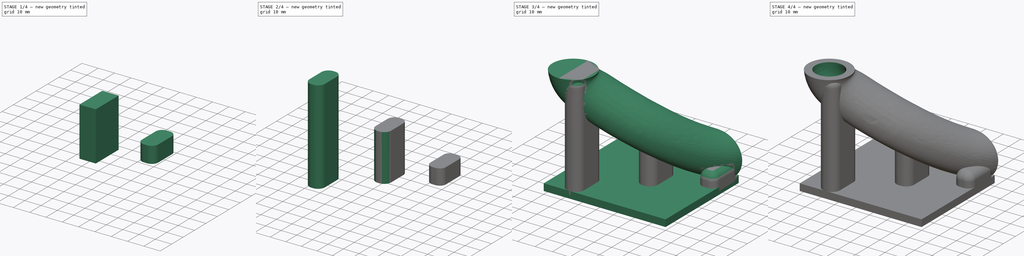
[diagram: build sequence overview — one tinted view per stage of 4, left to right]
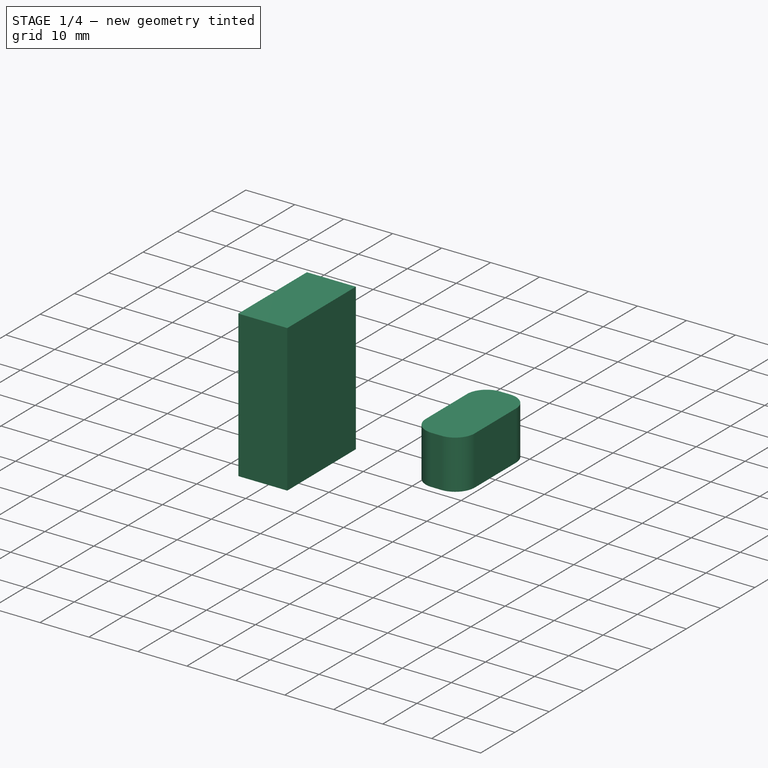
[diagram: stage 1 of 4 — iso view after this stage's code; geometry added in this stage tinted green]
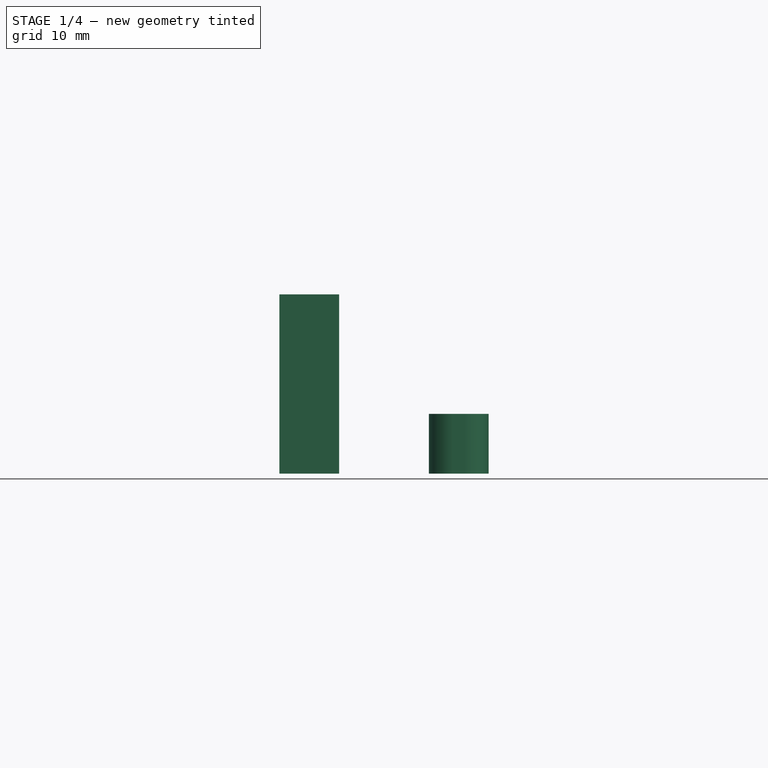
[diagram: stage 1 of 4 — front view after this stage's code; geometry added in this stage tinted green]
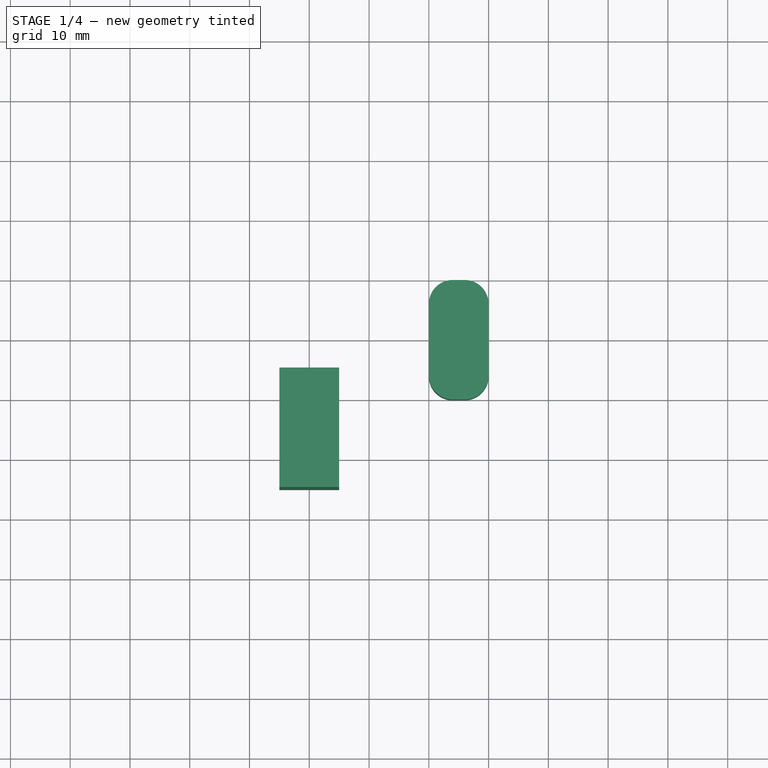
[diagram: stage 1 of 4 — top view after this stage's code; geometry added in this stage tinted green]
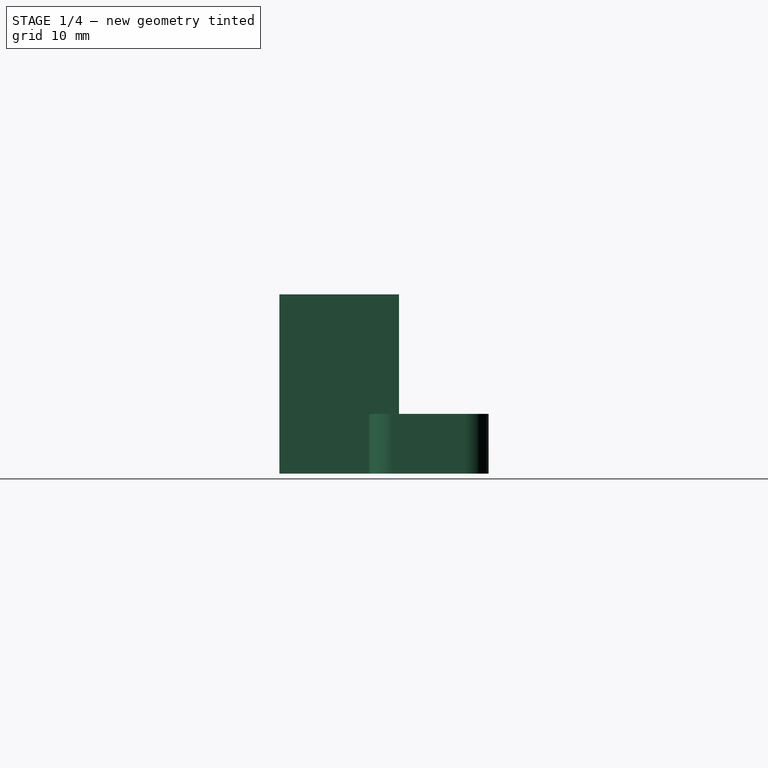
[diagram: stage 1 of 4 — right view after this stage's code; geometry added in this stage tinted green]
FCSTD DOCUMENT  (FreeCAD 1.0R39285 (Git))
Label: inletPipeV2
License: All rights reserved
LicenseURL: http://en.wikipedia.org/wiki/All_rights_reserved
objects: Sketcher::SketchObject×12, Part::Box×4, Part::Fillet×4, Part::Part2DObjectPython×2, PartDesign::AdditivePipe×2, PartDesign::Body×2, Part::MultiFuse×2, Part::Cut×1
note: 45 computed .brp shape members not serialized (recipe doc carries the construction recipe); baked Part::Feature solids carry a one-line shape summary decoded from their .brp

FEATURE [Part::Box] Box009  label="Cube007"
  AttacherType = Attacher::AttachEngine3D
  Height = 30
  Length = 10
  Placement = pos=(25,25,0) rot=(0,0,1;0rad)
  Width = 20
FEATURE [Part::Box] Box011  label="Cube009"
  AttacherType = Attacher::AttachEngine3D
  Height = 10
  Length = 10
  Placement = pos=(50,40,0) rot=(0,0,1;0rad)
  Width = 20
FEATURE [Part::Fillet] Fillet007
  Base = -> Box011
  EdgeLinks = -> Box011 [Edge1,Edge3,Edge5,Edge7]
  Edges = 4 edges r=4: [Edge1,Edge3,Edge5,Edge7]
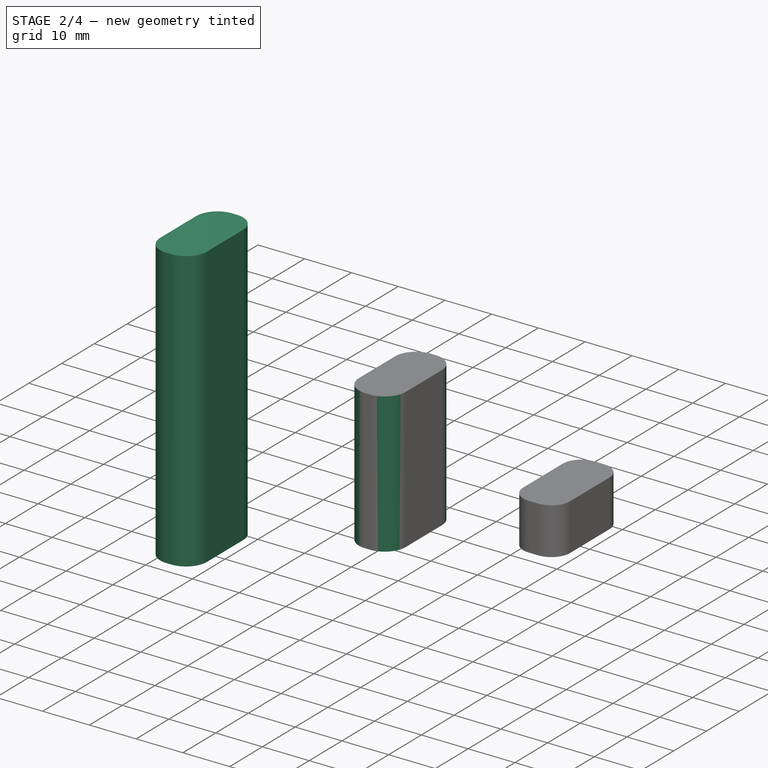
[diagram: stage 2 of 4 — iso view after this stage's code; geometry added in this stage tinted green]
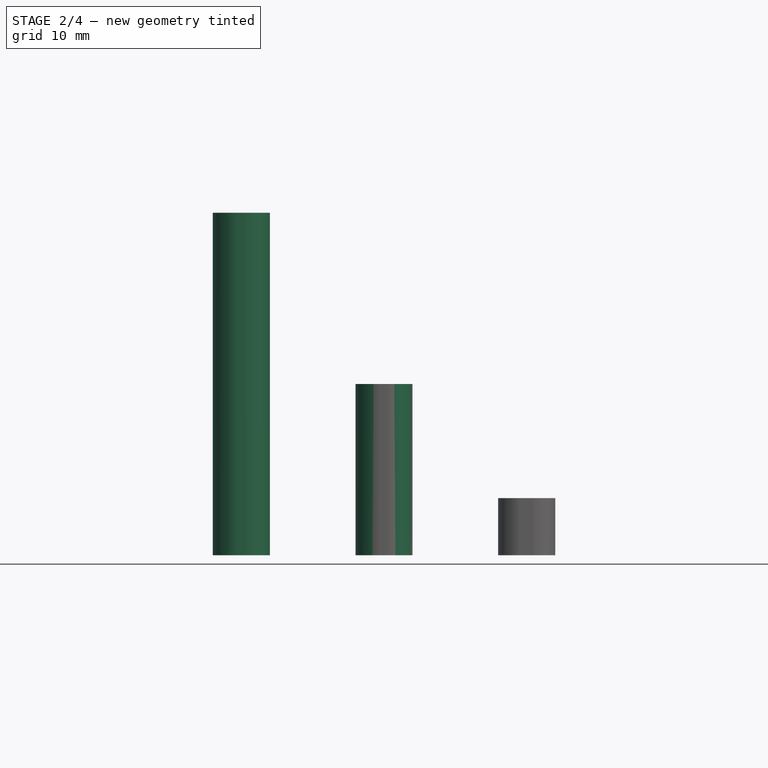
[diagram: stage 2 of 4 — front view after this stage's code; geometry added in this stage tinted green]
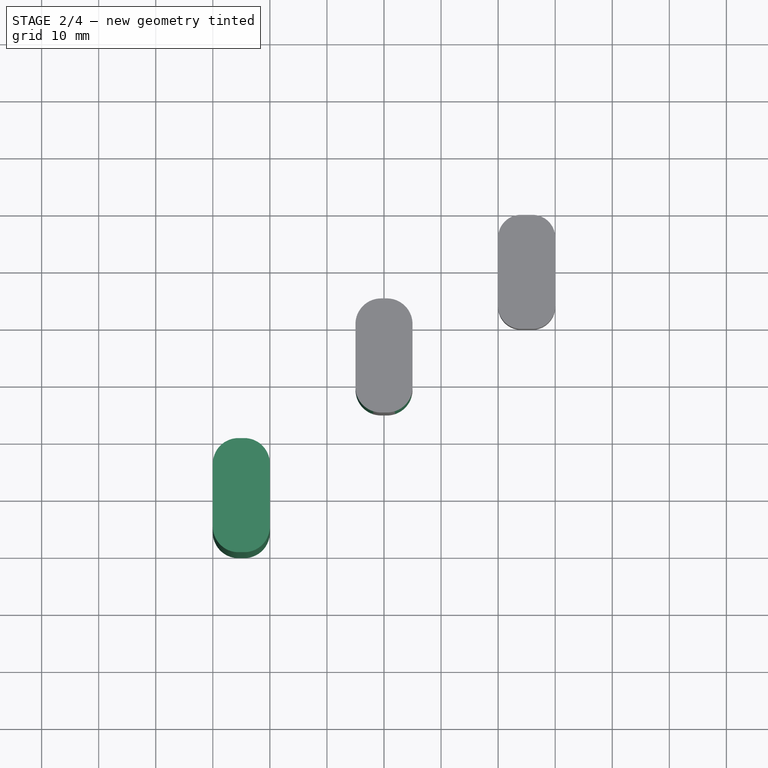
[diagram: stage 2 of 4 — top view after this stage's code; geometry added in this stage tinted green]
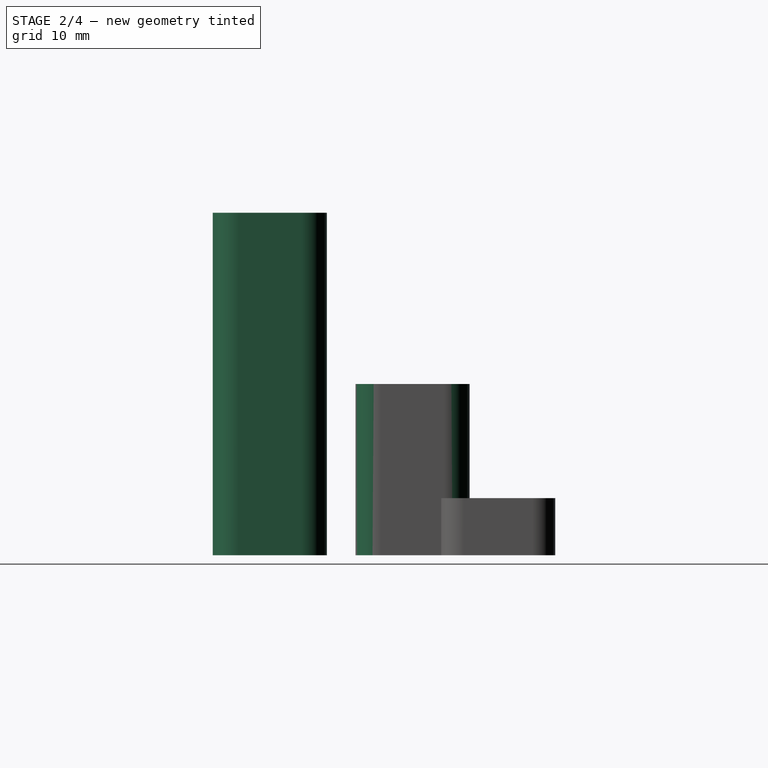
[diagram: stage 2 of 4 — right view after this stage's code; geometry added in this stage tinted green]
FEATURE [Part::Box] Box010  label="Cube008"
  AttacherType = Attacher::AttachEngine3D
  Height = 60
  Length = 10
  Width = 20
FEATURE [Part::Fillet] Fillet005
  Base = -> Box010
  EdgeLinks = -> Box010 [Edge1,Edge3,Edge5,Edge7]
  Edges = 4 edges r=4.5: [Edge1,Edge3,Edge5,Edge7]
FEATURE [Part::Fillet] Fillet006
  Base = -> Box009
  EdgeLinks = -> Box009 [Edge1,Edge3,Edge5,Edge7]
  Edges = 4 edges r=4.5: [Edge1,Edge3,Edge5,Edge7]
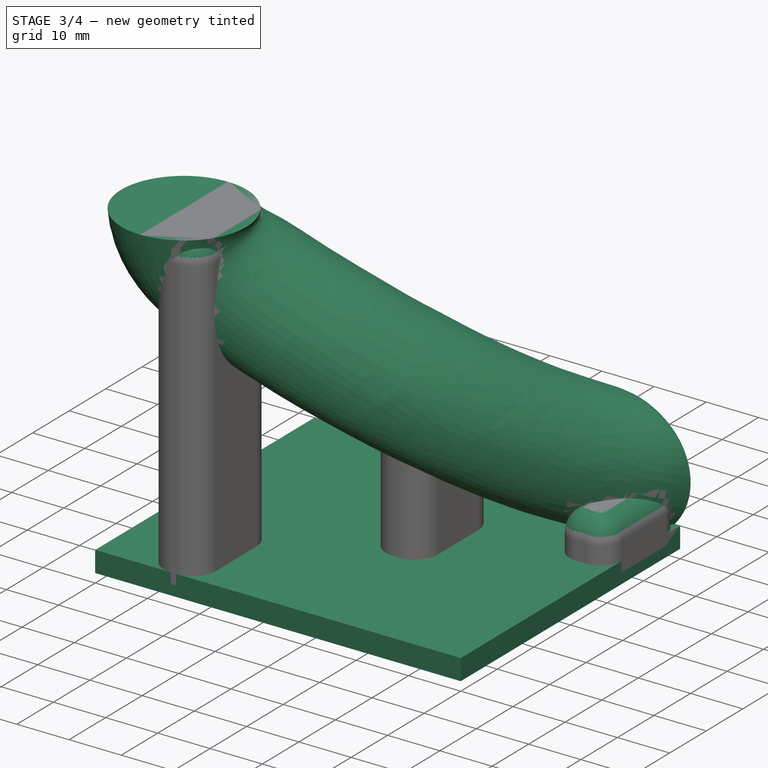
[diagram: stage 3 of 4 — iso view after this stage's code; geometry added in this stage tinted green]
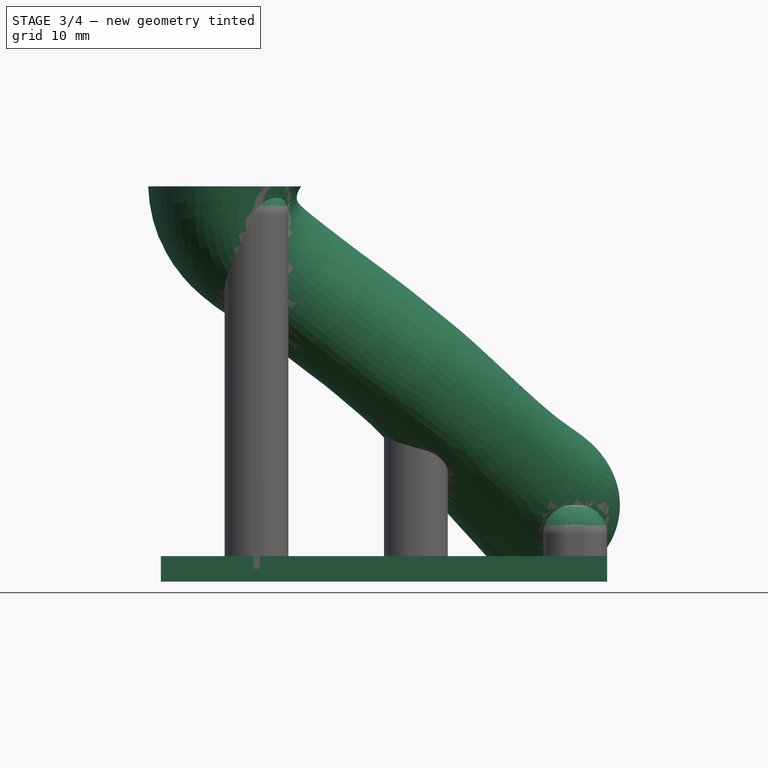
[diagram: stage 3 of 4 — front view after this stage's code; geometry added in this stage tinted green]
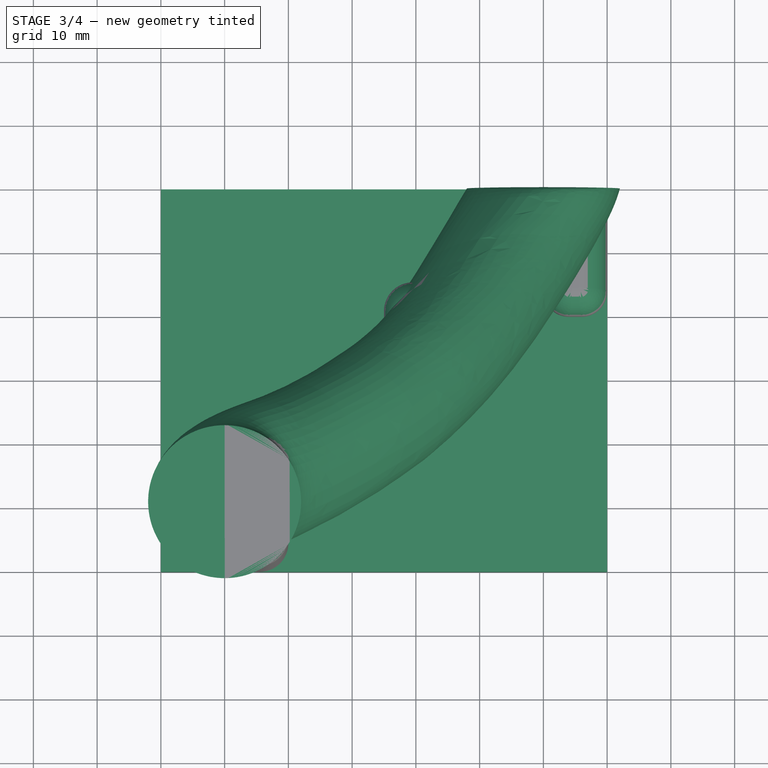
[diagram: stage 3 of 4 — top view after this stage's code; geometry added in this stage tinted green]
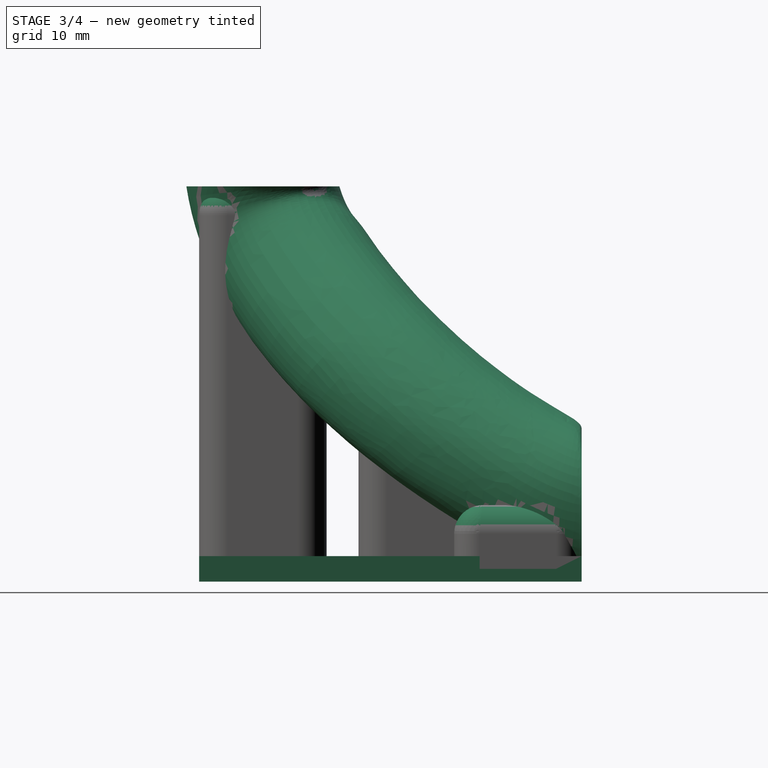
[diagram: stage 3 of 4 — right view after this stage's code; geometry added in this stage tinted green]
FEATURE [Sketcher::SketchObject] Sketch009
  ArcFitTolerance = 1e-06
  FullyConstrained = true
  MakeInternals = false
  Placement = pos=(0,0,60) rot=(0,0,1;0rad)
  sketch-geometry (1):
    g0: Circle CenterX=0 CenterY=10 CenterZ=0 NormalX=0 NormalY=0 NormalZ=1 AngleXU=0 Radius=12
  constraints (3):
    c: DistanceX(g0) = 0
    c: DistanceY(g0) = 10
    c: Radius(g0) = 12
FEATURE [Sketcher::SketchObject] Sketch008
  ArcFitTolerance = 1e-06
  FullyConstrained = true
  MakeInternals = false
  Placement = pos=(0,60,0) rot=(1,0,0;1.5708rad)
  sketch-geometry (1):
    g0: Circle CenterX=50 CenterY=10 CenterZ=0 NormalX=0 NormalY=0 NormalZ=1 AngleXU=0 Radius=12
  constraints (3):
    c: Radius(g0) = 12
    c: DistanceX(g0) = 50
    c: DistanceY(g0) = 10
FEATURE [Sketcher::SketchObject] Sketch010
  ArcFitTolerance = 1e-06
  FullyConstrained = true
  MakeInternals = false
  Placement = pos=(30,30,30) rot=(1,0,0;0.785398rad)
  sketch-geometry (1):
    g0: Circle CenterX=0 CenterY=0 CenterZ=0 NormalX=0 NormalY=0 NormalZ=1 AngleXU=0 Radius=12
  constraints (3):
    c: Radius(g0) = 12
    c: DistanceX(g0) = 0
    c: DistanceY(g0) = 0
FEATURE [Sketcher::SketchObject] Sketch011
  ArcFitTolerance = 1e-06
  FullyConstrained = true
  MakeInternals = false
  Placement = pos=(0,0,10) rot=(0,0,1;0rad)
  sketch-geometry (1):
    g0: LineSegment StartX=50 StartY=60 StartZ=0 EndX=50 EndY=50 EndZ=0
  constraints (4):
    c: Vertical(g0)
    c: DistanceX(g0) = 50
    c: DistanceY(g0,g0) = 10
    c: DistanceY(g0) = 60
FEATURE [Sketcher::SketchObject] Sketch012
  ArcFitTolerance = 1e-06
  FullyConstrained = true
  MakeInternals = false
  Placement = pos=(0,10,10) rot=(1,0,0;1.5708rad)
  sketch-geometry (1):
    g0: LineSegment StartX=0 StartY=50 StartZ=0 EndX=0 EndY=40 EndZ=0
  constraints (4):
    c: Vertical(g0)
    c: DistanceX(g0) = 0
    c: DistanceY(g0) = 50
    c: DistanceY(g0,g0) = 10
FEATURE [Sketcher::SketchObject] Sketch
  ArcFitTolerance = 1e-06
  FullyConstrained = true
  MakeInternals = false
  Placement = pos=(30,0,0) rot=(0.57735,0.57735,0.57735;2.0944rad)
  sketch-geometry (1):
    g0: LineSegment StartX=30 StartY=30 StartZ=0 EndX=33.5355 EndY=26.4645 EndZ=0
  constraints (4):
    c: Angle(g0) = -0.785398
    c: DistanceX(g0) = 30
    c: DistanceY(g0) = 30
    c: Distance(g0,g0) = 5
FEATURE [Part::Part2DObjectPython] BezCurve  # Draft 2D object (typed FeaturePython)
  Area = 0
  Closed = false
  Degree = 5
  Length = 90.8752
  MakeFace = true
  Points = (6) [(60,60,10),(50,50,10),(30,33.5355,26.4645),(40,30,30),(0,10,50),(10,10,60)]
FEATURE [PartDesign::AdditivePipe] AdditivePipe
  AuxilleryCurvelinear = true
  AuxillerySpineTangent = false
  Binormal = (0,0,0)
  Mode = 0
  Placement = pos=(0,0,60) rot=(0,0,1;0rad)
  Profile = -> Sketch009
  Sections = -> [Sketch010,Sketch008]
  Spine = -> BezCurve
  SpineTangent = false
  Suppressed = false
  Transformation = 1
  Transition = 1
FEATURE [Sketcher::SketchObject] Sketch018
  ArcFitTolerance = 1e-06
  FullyConstrained = true
  MakeInternals = false
  Placement = pos=(0,0,10) rot=(0,0,1;0rad)
  sketch-geometry (1):
    g0: LineSegment StartX=50 StartY=60 StartZ=0 EndX=50 EndY=50 EndZ=0
  constraints (4):
    c: Vertical(g0)
    c: DistanceX(g0) = 50
    c: DistanceY(g0,g0) = 10
    c: DistanceY(g0) = 60
FEATURE [Sketcher::SketchObject] Sketch019
  ArcFitTolerance = 1e-06
  FullyConstrained = true
  MakeInternals = false
  Placement = pos=(0,10,10) rot=(1,0,0;1.5708rad)
  sketch-geometry (1):
    g0: LineSegment StartX=0 StartY=50 StartZ=0 EndX=0 EndY=40 EndZ=0
  constraints (4):
    c: Vertical(g0)
    c: DistanceX(g0) = 0
    c: DistanceY(g0) = 50
    c: DistanceY(g0,g0) = 10
FEATURE [PartDesign::Body] Body003  label="inner"
  AllowCompound = false
  Group = -> [Sketch016,Sketch015,Sketch017,Sketch018,Sketch019,Sketch014,BezCurve003,AdditivePipe003]
  Origin = -> Origin003
  Tip = -> AdditivePipe003
FEATURE [Part::Box] Box008  label="Cube006"
  AttacherType = Attacher::AttachEngine3D
  Height = 4
  Length = 70
  Placement = pos=(-10,0,-2) rot=(0,0,1;0rad)
  Width = 60
FEATURE [Part::MultiFuse] Fusion002
  Shapes = -> [Box008,Fillet005,Fillet006,Fillet007]
FEATURE [Part::Fillet] Fillet008  label="support"
  Base = -> Fusion002
  EdgeLinks = -> Fusion002 [Edge47,Edge49,Edge51,Edge54,Edge56,Edge58,Edge60,Edge62,Edge64,Edge67,Edge68,Edge70,Edge73,Edge76,Edge78,Edge79,Edge81,Edge83,Edge86,Edge87,Edge91,Edge92,Edge93,Edge94]
  Edges = 24 edges r=4.5: [Edge47,Edge49,Edge51,Edge54,Edge56,Edge58,Edge60,Edge62,Edge64,Edge67,Edge68,Edge70,Edge73,Edge76,Edge78,Edge79,Edge81,Edge83,Edge86,Edge87,Edge91,Edge92,Edge93,Edge94]
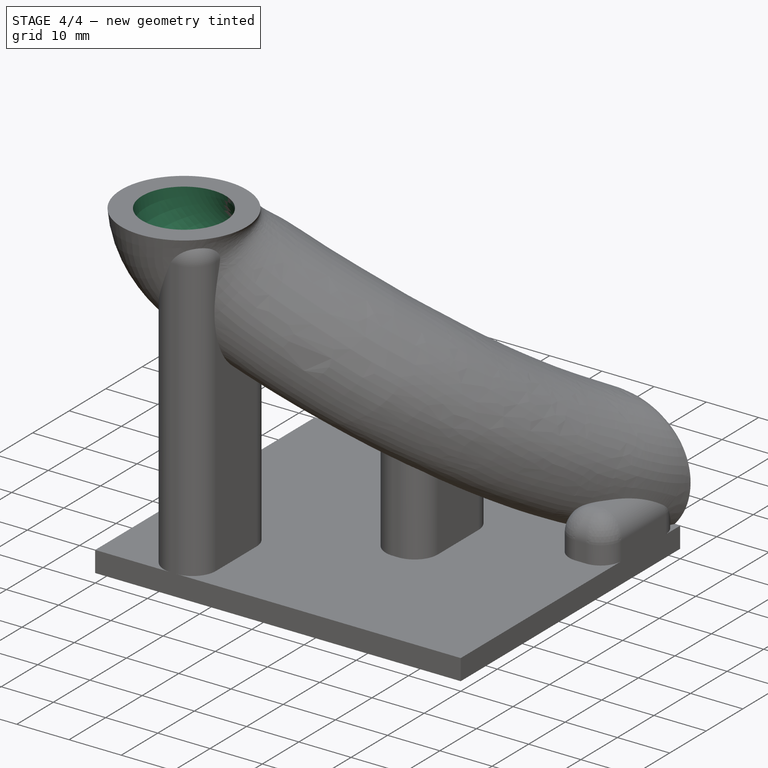
[diagram: stage 4 of 4 — iso view after this stage's code; geometry added in this stage tinted green]
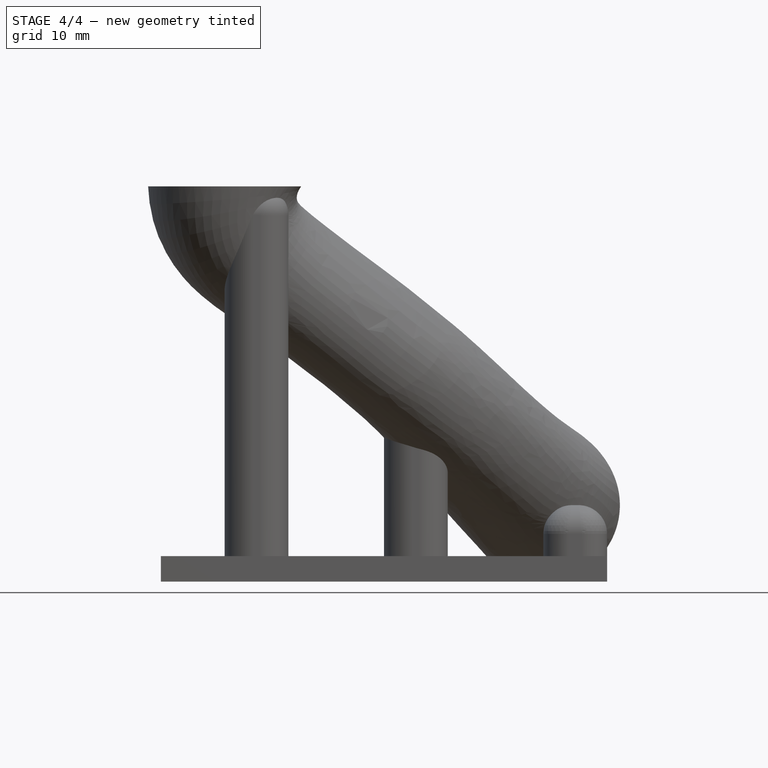
[diagram: stage 4 of 4 — front view after this stage's code; geometry added in this stage tinted green]
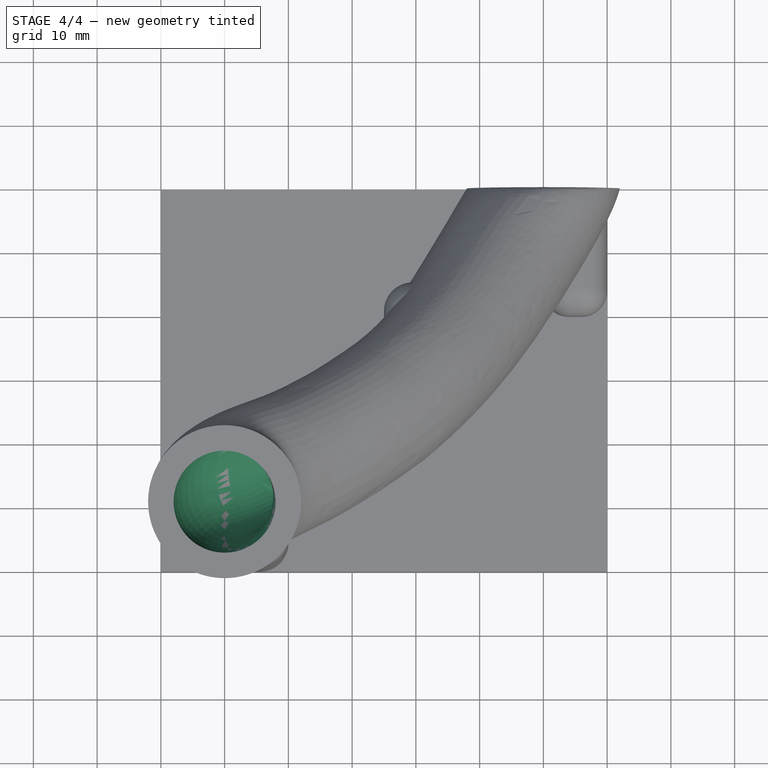
[diagram: stage 4 of 4 — top view after this stage's code; geometry added in this stage tinted green]
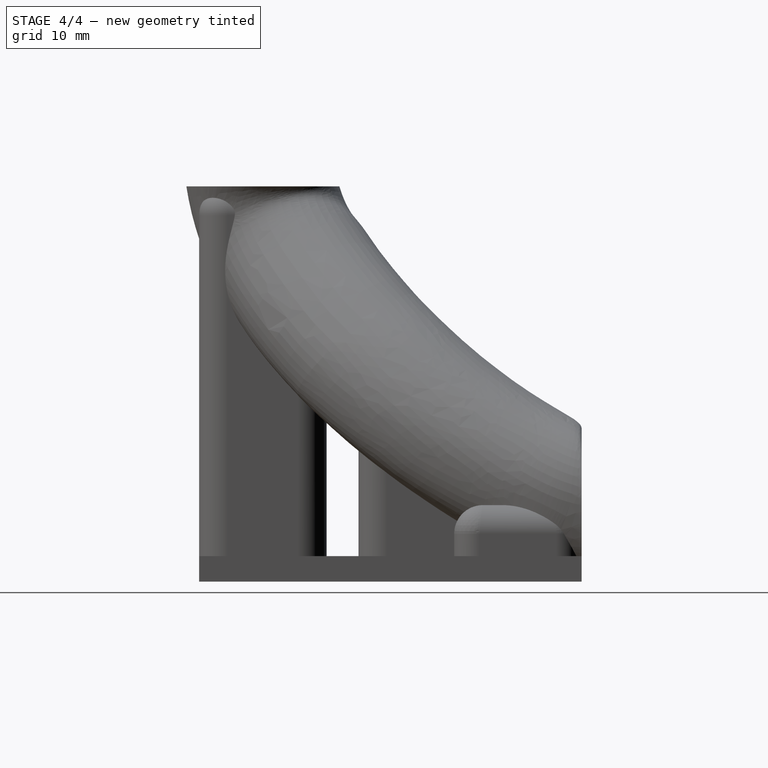
[diagram: stage 4 of 4 — right view after this stage's code; geometry added in this stage tinted green]
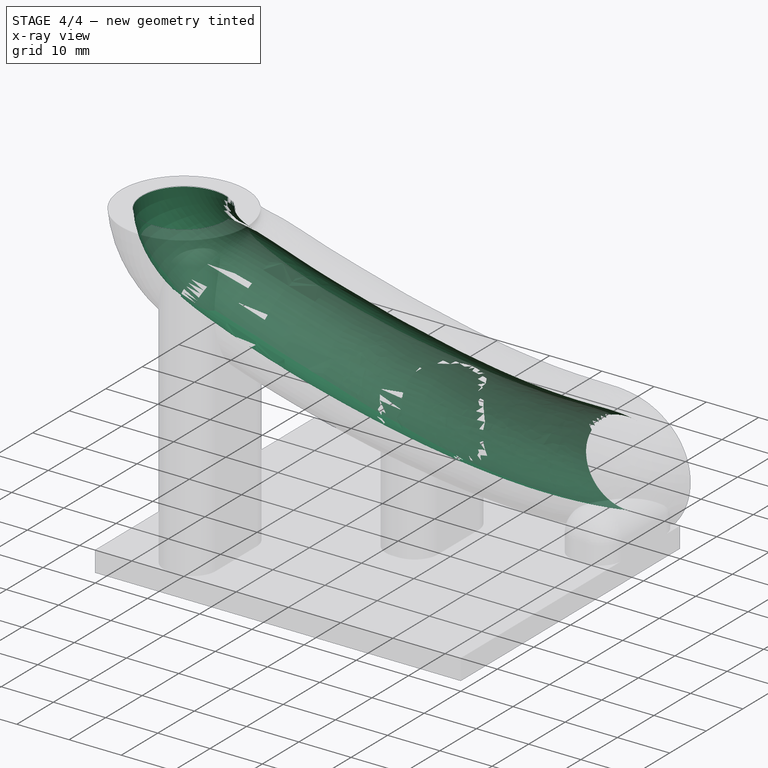
[diagram: stage 4 of 4 — x-ray composite at the iso view; earlier geometry ghosted, this stage's added geometry solid]
FEATURE [PartDesign::Body] Body  label="outer"
  AllowCompound = false
  Group = -> [Sketch009,Sketch008,Sketch010,Sketch011,Sketch012,Sketch,BezCurve,AdditivePipe]
  Origin = -> Origin
  Tip = -> AdditivePipe
FEATURE [Part::Part2DObjectPython] BezCurve003  # Draft 2D object (typed FeaturePython)
  Area = 0
  Closed = false
  Degree = 5
  Length = 90.8752
  MakeFace = true
  Points = (6) [(60,60,10),(50,50,10),(30,33.5355,26.4645),(40,30,30),(0,10,50),(10,10,60)]
FEATURE [Sketcher::SketchObject] Sketch014
  ArcFitTolerance = 1e-06
  FullyConstrained = true
  MakeInternals = false
  Placement = pos=(30,0,0) rot=(0.57735,0.57735,0.57735;2.0944rad)
  sketch-geometry (1):
    g0: LineSegment StartX=30 StartY=30 StartZ=0 EndX=33.5355 EndY=26.4645 EndZ=0
  constraints (4):
    c: Angle(g0) = -0.785398
    c: DistanceX(g0) = 30
    c: DistanceY(g0) = 30
    c: Distance(g0,g0) = 5
FEATURE [Sketcher::SketchObject] Sketch015
  ArcFitTolerance = 1e-06
  FullyConstrained = true
  MakeInternals = false
  Placement = pos=(0,60,0) rot=(1,0,0;1.5708rad)
  sketch-geometry (1):
    g0: Circle CenterX=50 CenterY=10 CenterZ=0 NormalX=0 NormalY=0 NormalZ=1 AngleXU=0 Radius=8
  constraints (3):
    c: Radius(g0) = 8
    c: DistanceX(g0) = 50
    c: DistanceY(g0) = 10
FEATURE [Sketcher::SketchObject] Sketch016
  ArcFitTolerance = 1e-06
  FullyConstrained = true
  MakeInternals = false
  Placement = pos=(0,0,60) rot=(0,0,1;0rad)
  sketch-geometry (1):
    g0: Circle CenterX=0 CenterY=10 CenterZ=0 NormalX=0 NormalY=0 NormalZ=1 AngleXU=0 Radius=8
  constraints (3):
    c: DistanceX(g0) = 0
    c: DistanceY(g0) = 10
    c: Radius(g0) = 8
FEATURE [Sketcher::SketchObject] Sketch017
  ArcFitTolerance = 1e-06
  FullyConstrained = true
  MakeInternals = false
  Placement = pos=(30,30,30) rot=(1,0,0;0.785398rad)
  sketch-geometry (1):
    g0: Circle CenterX=0 CenterY=0 CenterZ=0 NormalX=0 NormalY=0 NormalZ=1 AngleXU=0 Radius=8
  constraints (3):
    c: Radius(g0) = 8
    c: DistanceX(g0) = 0
    c: DistanceY(g0) = 0
FEATURE [PartDesign::AdditivePipe] AdditivePipe003
  AuxilleryCurvelinear = true
  AuxillerySpineTangent = false
  Binormal = (0,0,0)
  Mode = 0
  Placement = pos=(0,0,60) rot=(0,0,1;0rad)
  Profile = -> Sketch016
  Sections = -> [Sketch017,Sketch015]
  Spine = -> BezCurve003
  SpineTangent = false
  Suppressed = false
  Transformation = 1
  Transition = 1
FEATURE [Part::MultiFuse] Fusion
  Shapes = -> [Fillet008,Body]
FEATURE [Part::Cut] Cut
  Base = -> Fusion
  Tool = -> Body003
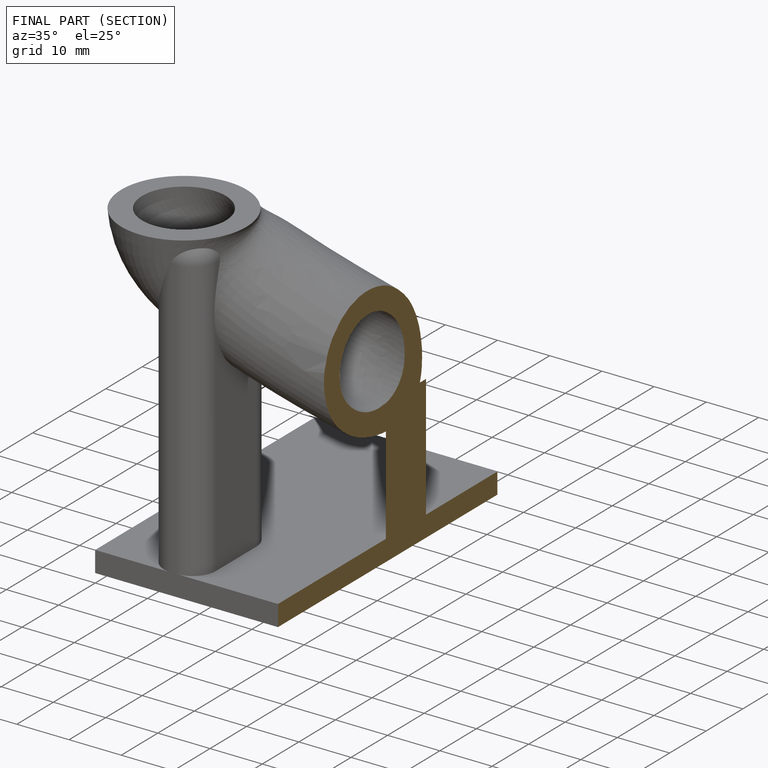
[diagram: finished part — half-section view (interior)]
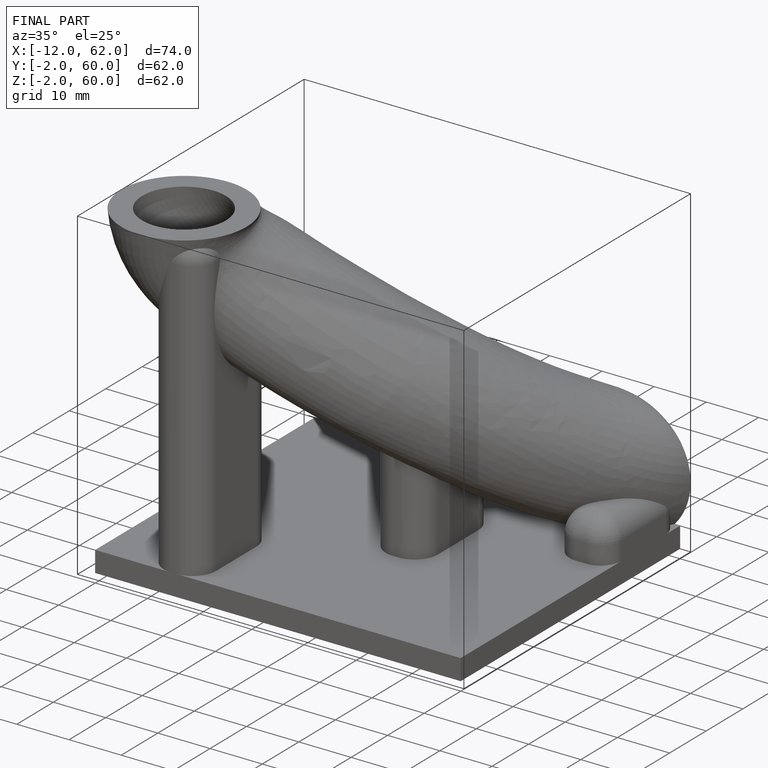
[diagram: finished part — iso view with bounding-box wireframe]
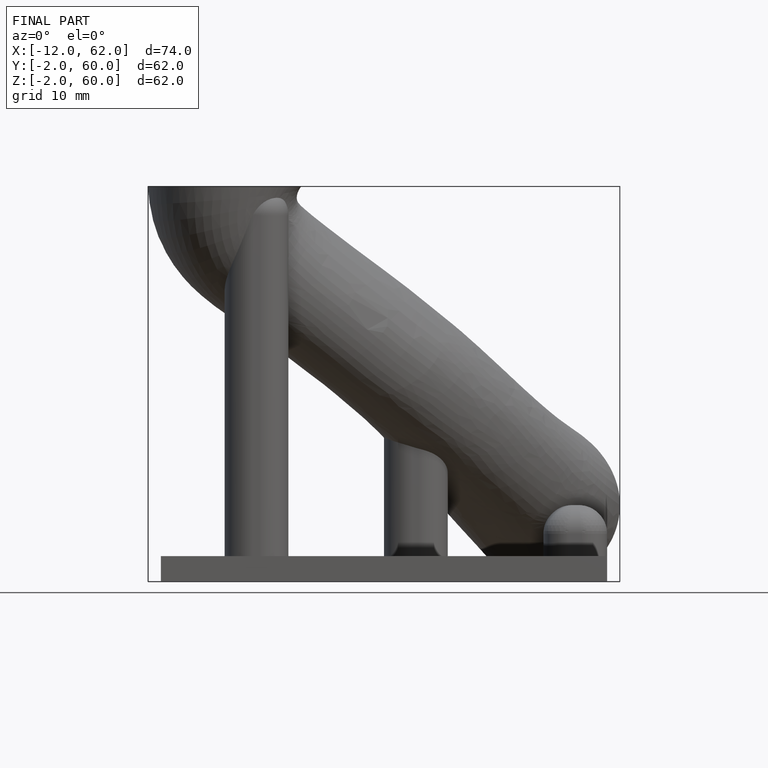
[diagram: finished part — front view with bounding-box wireframe]
